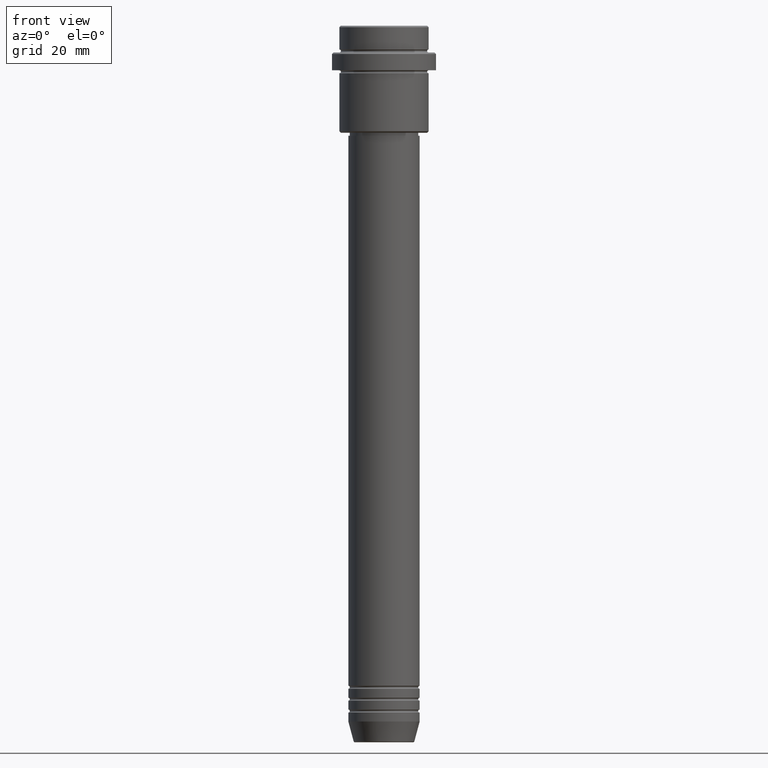
[diagram: clean part render]
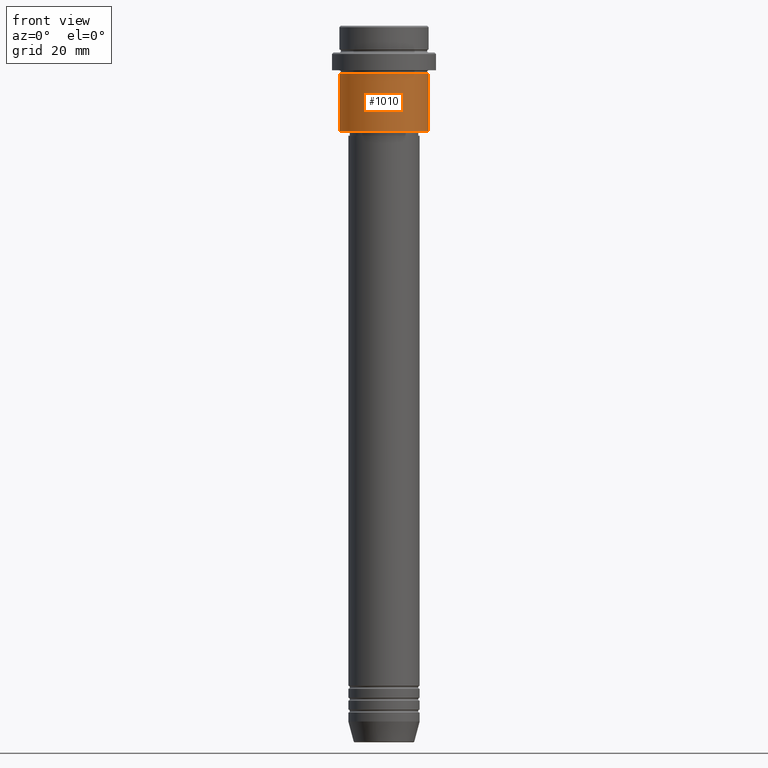
[diagram: same view with one face highlighted and labeled with its STEP entity id]
A machine part, front view. The second image highlights one B-rep face of the part: STEP entity #1010.
In plain terms, the highlighted cylindrical surface (partial cylindrical patch) has radius 15 mm, axis along (-0, -0, 1).
Its self-contained STEP definition (entity closure, byte-faithful):
#18 = CARTESIAN_POINT ( 'NONE',  ( -15.00000000000000000, 1.836970198721029589E-15, 0.000000000000000000 ) ) ;
#77 = CIRCLE ( 'NONE', #442, 15.00000000000000178 ) ;
#216 = AXIS2_PLACEMENT_3D ( 'NONE', #299, #923, #1352 ) ;
#246 = DIRECTION ( 'NONE',  ( -0.000000000000000000, -0.000000000000000000, 1.000000000000000000 ) ) ;
#275 = VERTEX_POINT ( 'NONE', #811 ) ;
#295 = CARTESIAN_POINT ( 'NONE',  ( 0.000000000000000000, 0.000000000000000000, 0.000000000000000000 ) ) ;
#299 = CARTESIAN_POINT ( 'NONE',  ( 0.000000000000000000, 0.000000000000000000, -35.49999999999993605 ) ) ;
#327 = EDGE_LOOP ( 'NONE', ( #1153, #655, #1359, #1260 ) ) ;
#407 = CARTESIAN_POINT ( 'NONE',  ( 15.00000000000000000, 0.000000000000000000, 0.000000000000000000 ) ) ;
#442 = AXIS2_PLACEMENT_3D ( 'NONE', #1311, #800, #1198 ) ;
#507 = LINE ( 'NONE', #407, #1143 ) ;
#538 = VERTEX_POINT ( 'NONE', #918 ) ;
#570 = CARTESIAN_POINT ( 'NONE',  ( 15.00000000000000178, 0.000000000000000000, -16.00000000000000000 ) ) ;
#582 = CYLINDRICAL_SURFACE ( 'NONE', #737, 15.00000000000000000 ) ;
#595 = DIRECTION ( 'NONE',  ( 1.000000000000000000, 0.000000000000000000, 0.000000000000000000 ) ) ;
#643 = EDGE_CURVE ( 'NONE', #538, #895, #507, .T. ) ;
#655 = ORIENTED_EDGE ( 'NONE', *, *, #1133, .T. ) ;
#737 = AXIS2_PLACEMENT_3D ( 'NONE', #295, #1252, #595 ) ;
#800 = DIRECTION ( 'NONE',  ( -0.000000000000000000, -0.000000000000000000, 1.000000000000000000 ) ) ;
#811 = CARTESIAN_POINT ( 'NONE',  ( -15.00000000000000000, 1.836970198721029589E-15, -35.49999999999993605 ) ) ;
#895 = VERTEX_POINT ( 'NONE', #570 ) ;
#918 = CARTESIAN_POINT ( 'NONE',  ( 15.00000000000000000, 0.000000000000000000, -35.49999999999993605 ) ) ;
#923 = DIRECTION ( 'NONE',  ( -0.000000000000000000, -0.000000000000000000, 1.000000000000000000 ) ) ;
#1006 = VERTEX_POINT ( 'NONE', #1225 ) ;
#1010 = ADVANCED_FACE ( 'NONE', ( #1126 ), #582, .T. ) ;
#1126 = FACE_OUTER_BOUND ( 'NONE', #327, .T. ) ;
#1133 = EDGE_CURVE ( 'NONE', #275, #538, #1229, .T. ) ;
#1143 = VECTOR ( 'NONE', #1240, 1000.000000000000000 ) ;
#1153 = ORIENTED_EDGE ( 'NONE', *, *, #1389, .F. ) ;
#1198 = DIRECTION ( 'NONE',  ( 1.000000000000000000, 0.000000000000000000, 0.000000000000000000 ) ) ;
#1209 = VECTOR ( 'NONE', #246, 1000.000000000000000 ) ;
#1225 = CARTESIAN_POINT ( 'NONE',  ( -15.00000000000000355, 1.836970198721029983E-15, -16.00000000000000000 ) ) ;
#1229 = CIRCLE ( 'NONE', #216, 15.00000000000000000 ) ;
#1240 = DIRECTION ( 'NONE',  ( -0.000000000000000000, -0.000000000000000000, 1.000000000000000000 ) ) ;
#1252 = DIRECTION ( 'NONE',  ( -0.000000000000000000, -0.000000000000000000, 1.000000000000000000 ) ) ;
#1260 = ORIENTED_EDGE ( 'NONE', *, *, #1347, .F. ) ;
#1311 = CARTESIAN_POINT ( 'NONE',  ( 0.000000000000000000, 0.000000000000000000, -16.00000000000000000 ) ) ;
#1336 = LINE ( 'NONE', #18, #1209 ) ;
#1347 = EDGE_CURVE ( 'NONE', #1006, #895, #77, .T. ) ;
#1352 = DIRECTION ( 'NONE',  ( -1.000000000000000000, 0.000000000000000000, 0.000000000000000000 ) ) ;
#1359 = ORIENTED_EDGE ( 'NONE', *, *, #643, .T. ) ;
#1389 = EDGE_CURVE ( 'NONE', #275, #1006, #1336, .T. ) ;